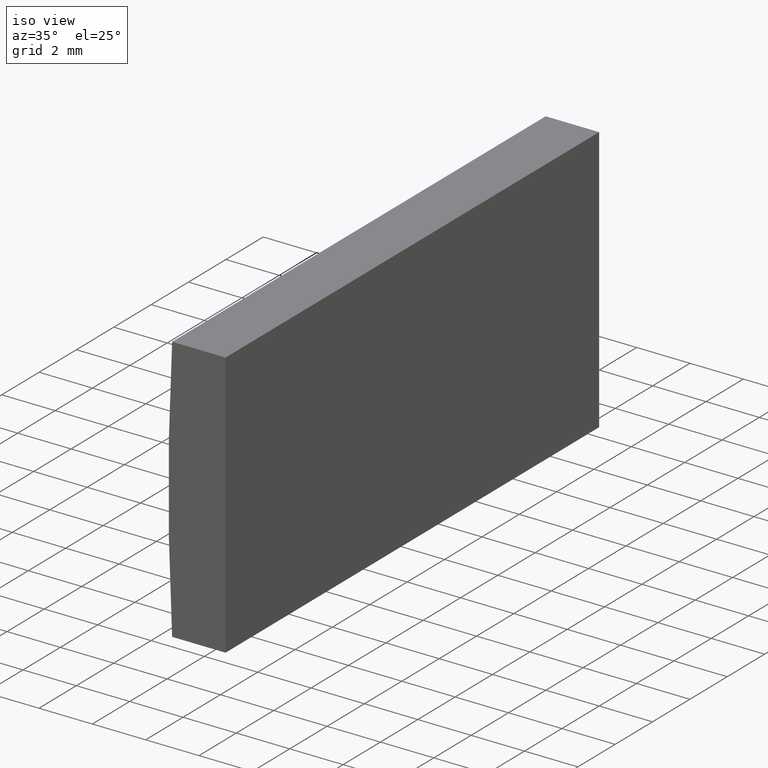
[diagram: clean part render]
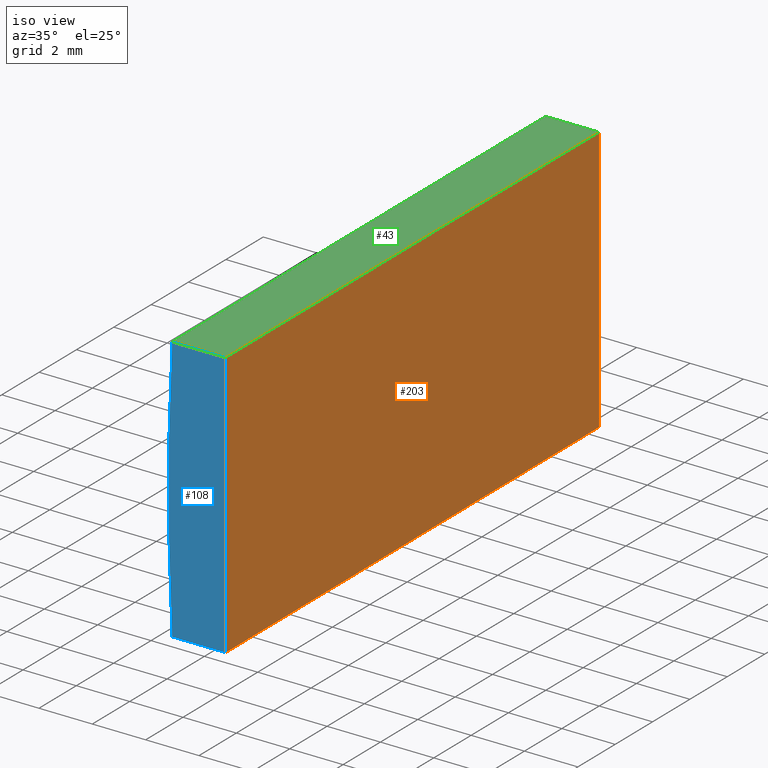
[diagram: same view with three faces highlighted in distinct colors, each labeled with its STEP entity id]
A machine part, iso view with three faces highlighted in distinct colors.
Their STEP definitions:

[orange] entity #203 — the highlighted planar face has unit normal (-1, 0, 0).
#13 = DIRECTION ( 'NONE',  ( -0.0000000000000000000, -1.000000000000000000, -0.0000000000000000000 ) ) ;
#14 = CARTESIAN_POINT ( 'NONE',  ( -85.20479566514873700, 20.00000000000000000, -4.999999999999987600 ) ) ;
#15 = ORIENTED_EDGE ( 'NONE', *, *, #73, .F. ) ;
#17 = EDGE_LOOP ( 'NONE', ( #179, #176, #15, #140 ) ) ;
#18 = VECTOR ( 'NONE', #13, 1000.000000000000000 ) ;
#24 = VERTEX_POINT ( 'NONE', #25 ) ;
#25 = CARTESIAN_POINT ( 'NONE',  ( -85.20479566514873700, 0.0000000000000000000, -4.999999999999987600 ) ) ;
#30 = LINE ( 'NONE', #155, #147 ) ;
#41 = CARTESIAN_POINT ( 'NONE',  ( -85.20479566514873700, 20.00000000000000000, -4.999999999999987600 ) ) ;
#60 = CARTESIAN_POINT ( 'NONE',  ( -85.20479566514873700, 0.0000000000000000000, 5.000000000000000000 ) ) ;
#65 = EDGE_CURVE ( 'NONE', #146, #24, #124, .T. ) ;
#73 = EDGE_CURVE ( 'NONE', #144, #146, #126, .T. ) ;
#90 = EDGE_CURVE ( 'NONE', #144, #186, #168, .T. ) ;
#106 = CARTESIAN_POINT ( 'NONE',  ( -85.20479566514873700, 20.00000000000000000, 5.000000000000000000 ) ) ;
#115 = DIRECTION ( 'NONE',  ( -1.000000000000000000, 0.0000000000000000000, 0.0000000000000000000 ) ) ;
#124 = LINE ( 'NONE', #197, #18 ) ;
#126 = LINE ( 'NONE', #41, #188 ) ;
#128 = AXIS2_PLACEMENT_3D ( 'NONE', #14, #115, #149 ) ;
#129 = CARTESIAN_POINT ( 'NONE',  ( -85.20479566514873700, 20.00000000000000000, -4.999999999999987600 ) ) ;
#139 = EDGE_CURVE ( 'NONE', #186, #24, #30, .T. ) ;
#140 = ORIENTED_EDGE ( 'NONE', *, *, #90, .T. ) ;
#144 = VERTEX_POINT ( 'NONE', #106 ) ;
#146 = VERTEX_POINT ( 'NONE', #129 ) ;
#147 = VECTOR ( 'NONE', #185, 1000.000000000000000 ) ;
#149 = DIRECTION ( 'NONE',  ( 0.0000000000000000000, 0.0000000000000000000, 1.000000000000000000 ) ) ;
#150 = FACE_OUTER_BOUND ( 'NONE', #17, .T. ) ;
#155 = CARTESIAN_POINT ( 'NONE',  ( -85.20479566514873700, 0.0000000000000000000, -4.999999999999987600 ) ) ;
#164 = VECTOR ( 'NONE', #187, 1000.000000000000000 ) ;
#167 = DIRECTION ( 'NONE',  ( -0.0000000000000000000, -0.0000000000000000000, -1.000000000000000000 ) ) ;
#168 = LINE ( 'NONE', #194, #164 ) ;
#174 = PLANE ( 'NONE',  #128 ) ;
#176 = ORIENTED_EDGE ( 'NONE', *, *, #65, .F. ) ;
#179 = ORIENTED_EDGE ( 'NONE', *, *, #139, .T. ) ;
#185 = DIRECTION ( 'NONE',  ( -0.0000000000000000000, -0.0000000000000000000, -1.000000000000000000 ) ) ;
#186 = VERTEX_POINT ( 'NONE', #60 ) ;
#187 = DIRECTION ( 'NONE',  ( -0.0000000000000000000, -1.000000000000000000, -0.0000000000000000000 ) ) ;
#188 = VECTOR ( 'NONE', #167, 1000.000000000000000 ) ;
#194 = CARTESIAN_POINT ( 'NONE',  ( -85.20479566514873700, 20.00000000000000000, 5.000000000000000000 ) ) ;
#197 = CARTESIAN_POINT ( 'NONE',  ( -85.20479566514873700, 20.00000000000000000, -4.999999999999987600 ) ) ;
#203 = ADVANCED_FACE ( 'NONE', ( #150 ), #174, .F. ) ;

[blue] entity #108 — the highlighted planar face has unit normal (0, 1, 0).
#4 = VECTOR ( 'NONE', #116, 1000.000000000000000 ) ;
#8 = DIRECTION ( 'NONE',  ( 0.0000000000000000000, 1.000000000000000000, 0.0000000000000000000 ) ) ;
#10 = DIRECTION ( 'NONE',  ( 0.0000000000000000000, -0.0000000000000000000, 1.000000000000000000 ) ) ;
#24 = VERTEX_POINT ( 'NONE', #25 ) ;
#25 = CARTESIAN_POINT ( 'NONE',  ( -85.20479566514873700, 0.0000000000000000000, -4.999999999999987600 ) ) ;
#29 = DIRECTION ( 'NONE',  ( 0.0000000000000000000, 1.000000000000000000, 0.0000000000000000000 ) ) ;
#30 = LINE ( 'NONE', #155, #147 ) ;
#44 = DIRECTION ( 'NONE',  ( -1.000000000000000000, -0.0000000000000000000, -6.060670037416406300E-015 ) ) ;
#46 = VERTEX_POINT ( 'NONE', #172 ) ;
#60 = CARTESIAN_POINT ( 'NONE',  ( -85.20479566514873700, 0.0000000000000000000, 5.000000000000000000 ) ) ;
#68 = EDGE_CURVE ( 'NONE', #46, #186, #190, .T. ) ;
#74 = CARTESIAN_POINT ( 'NONE',  ( 4.355204334851265500, 0.0000000000000000000, 4.286263797015675000E-017 ) ) ;
#77 = ORIENTED_EDGE ( 'NONE', *, *, #82, .F. ) ;
#78 = VECTOR ( 'NONE', #44, 1000.000000000000000 ) ;
#82 = EDGE_CURVE ( 'NONE', #153, #46, #111, .T. ) ;
#93 = EDGE_CURVE ( 'NONE', #24, #153, #109, .T. ) ;
#108 = ADVANCED_FACE ( 'NONE', ( #170 ), #138, .F. ) ;
#109 = LINE ( 'NONE', #118, #78 ) ;
#110 = ORIENTED_EDGE ( 'NONE', *, *, #139, .F. ) ;
#111 = CIRCLE ( 'NONE', #169, 91.70000000000000300 ) ;
#116 = DIRECTION ( 'NONE',  ( 1.000000000000000000, 0.0000000000000000000, 0.0000000000000000000 ) ) ;
#118 = CARTESIAN_POINT ( 'NONE',  ( -87.20838012971630300, 0.0000000000000000000, -5.000000000000000000 ) ) ;
#132 = CARTESIAN_POINT ( 'NONE',  ( -87.20838012971630300, 0.0000000000000000000, 5.000000000000000000 ) ) ;
#137 = ORIENTED_EDGE ( 'NONE', *, *, #68, .F. ) ;
#138 = PLANE ( 'NONE',  #165 ) ;
#139 = EDGE_CURVE ( 'NONE', #186, #24, #30, .T. ) ;
#147 = VECTOR ( 'NONE', #185, 1000.000000000000000 ) ;
#153 = VERTEX_POINT ( 'NONE', #202 ) ;
#154 = CARTESIAN_POINT ( 'NONE',  ( 4.355204334851265500, 0.0000000000000000000, 4.286263797015675000E-017 ) ) ;
#155 = CARTESIAN_POINT ( 'NONE',  ( -85.20479566514873700, 0.0000000000000000000, -4.999999999999987600 ) ) ;
#156 = EDGE_LOOP ( 'NONE', ( #77, #191, #110, #137 ) ) ;
#165 = AXIS2_PLACEMENT_3D ( 'NONE', #154, #29, #10 ) ;
#169 = AXIS2_PLACEMENT_3D ( 'NONE', #74, #8, #173 ) ;
#170 = FACE_OUTER_BOUND ( 'NONE', #156, .T. ) ;
#172 = CARTESIAN_POINT ( 'NONE',  ( -87.20838012971630300, 0.0000000000000000000, 5.000000000000000000 ) ) ;
#173 = DIRECTION ( 'NONE',  ( 0.0000000000000000000, 0.0000000000000000000, 1.000000000000000000 ) ) ;
#185 = DIRECTION ( 'NONE',  ( -0.0000000000000000000, -0.0000000000000000000, -1.000000000000000000 ) ) ;
#186 = VERTEX_POINT ( 'NONE', #60 ) ;
#190 = LINE ( 'NONE', #132, #4 ) ;
#191 = ORIENTED_EDGE ( 'NONE', *, *, #93, .F. ) ;
#202 = CARTESIAN_POINT ( 'NONE',  ( -87.20838012971630300, 0.0000000000000000000, -5.000000000000000000 ) ) ;

[green] entity #43 — the highlighted planar face has unit normal (0, 0, -1).
#3 = PLANE ( 'NONE',  #160 ) ;
#4 = VECTOR ( 'NONE', #116, 1000.000000000000000 ) ;
#5 = ORIENTED_EDGE ( 'NONE', *, *, #68, .T. ) ;
#27 = CARTESIAN_POINT ( 'NONE',  ( -87.20838012971630300, 20.00000000000000000, 5.000000000000000000 ) ) ;
#43 = ADVANCED_FACE ( 'NONE', ( #86 ), #3, .F. ) ;
#46 = VERTEX_POINT ( 'NONE', #172 ) ;
#54 = VECTOR ( 'NONE', #166, 1000.000000000000000 ) ;
#56 = EDGE_CURVE ( 'NONE', #62, #46, #175, .T. ) ;
#57 = CARTESIAN_POINT ( 'NONE',  ( -87.20838012971630300, 20.00000000000000000, 5.000000000000000000 ) ) ;
#60 = CARTESIAN_POINT ( 'NONE',  ( -85.20479566514873700, 0.0000000000000000000, 5.000000000000000000 ) ) ;
#62 = VERTEX_POINT ( 'NONE', #178 ) ;
#66 = ORIENTED_EDGE ( 'NONE', *, *, #56, .T. ) ;
#68 = EDGE_CURVE ( 'NONE', #46, #186, #190, .T. ) ;
#79 = DIRECTION ( 'NONE',  ( -1.000000000000000000, 0.0000000000000000000, -0.0000000000000000000 ) ) ;
#86 = FACE_OUTER_BOUND ( 'NONE', #97, .T. ) ;
#90 = EDGE_CURVE ( 'NONE', #144, #186, #168, .T. ) ;
#94 = EDGE_CURVE ( 'NONE', #62, #144, #96, .T. ) ;
#95 = DIRECTION ( 'NONE',  ( 1.000000000000000000, 0.0000000000000000000, 0.0000000000000000000 ) ) ;
#96 = LINE ( 'NONE', #57, #105 ) ;
#97 = EDGE_LOOP ( 'NONE', ( #5, #180, #151, #66 ) ) ;
#105 = VECTOR ( 'NONE', #95, 1000.000000000000000 ) ;
#106 = CARTESIAN_POINT ( 'NONE',  ( -85.20479566514873700, 20.00000000000000000, 5.000000000000000000 ) ) ;
#116 = DIRECTION ( 'NONE',  ( 1.000000000000000000, 0.0000000000000000000, 0.0000000000000000000 ) ) ;
#125 = CARTESIAN_POINT ( 'NONE',  ( -87.20838012971630300, 20.00000000000000000, 5.000000000000000000 ) ) ;
#132 = CARTESIAN_POINT ( 'NONE',  ( -87.20838012971630300, 0.0000000000000000000, 5.000000000000000000 ) ) ;
#144 = VERTEX_POINT ( 'NONE', #106 ) ;
#151 = ORIENTED_EDGE ( 'NONE', *, *, #94, .F. ) ;
#158 = DIRECTION ( 'NONE',  ( 0.0000000000000000000, 0.0000000000000000000, -1.000000000000000000 ) ) ;
#160 = AXIS2_PLACEMENT_3D ( 'NONE', #125, #158, #79 ) ;
#164 = VECTOR ( 'NONE', #187, 1000.000000000000000 ) ;
#166 = DIRECTION ( 'NONE',  ( -0.0000000000000000000, -1.000000000000000000, -0.0000000000000000000 ) ) ;
#168 = LINE ( 'NONE', #194, #164 ) ;
#172 = CARTESIAN_POINT ( 'NONE',  ( -87.20838012971630300, 0.0000000000000000000, 5.000000000000000000 ) ) ;
#175 = LINE ( 'NONE', #27, #54 ) ;
#178 = CARTESIAN_POINT ( 'NONE',  ( -87.20838012971630300, 20.00000000000000000, 5.000000000000000000 ) ) ;
#180 = ORIENTED_EDGE ( 'NONE', *, *, #90, .F. ) ;
#186 = VERTEX_POINT ( 'NONE', #60 ) ;
#187 = DIRECTION ( 'NONE',  ( -0.0000000000000000000, -1.000000000000000000, -0.0000000000000000000 ) ) ;
#190 = LINE ( 'NONE', #132, #4 ) ;
#194 = CARTESIAN_POINT ( 'NONE',  ( -85.20479566514873700, 20.00000000000000000, 5.000000000000000000 ) ) ;